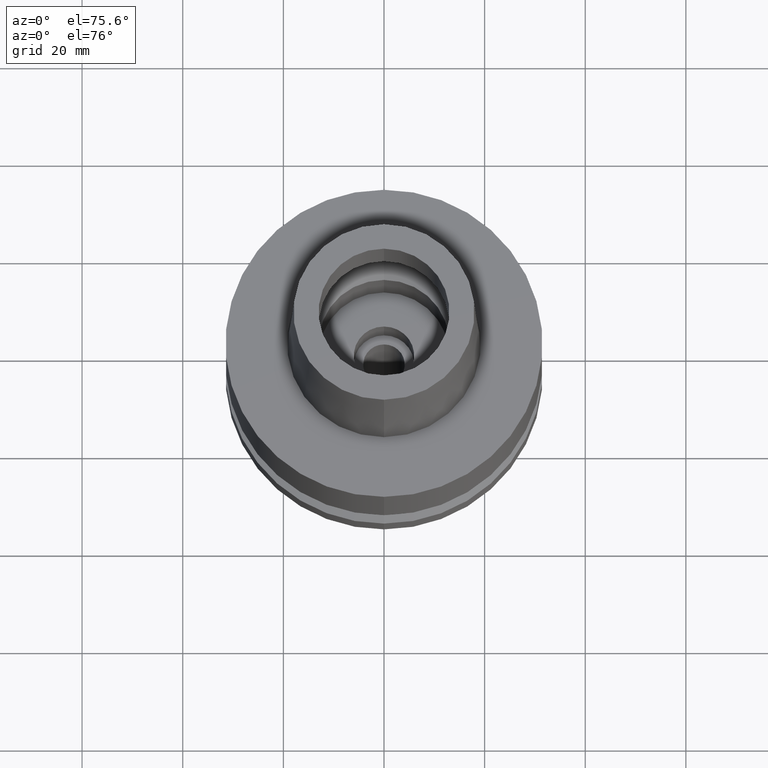
[diagram: clean part render]
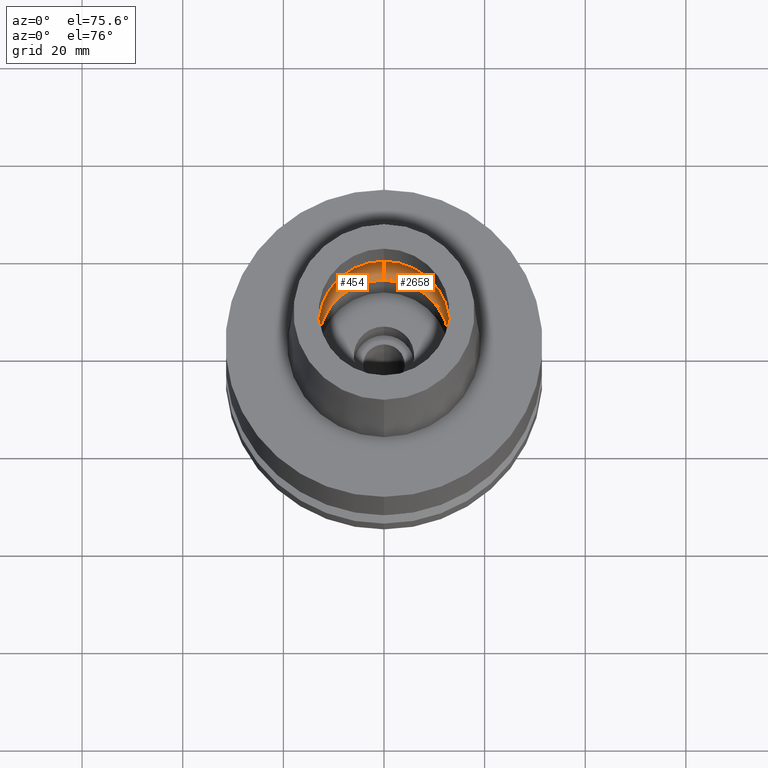
[diagram: same view with one multi-face feature highlighted, each face labeled with its STEP entity id]
A machine part, auxiliary view. The highlighted faces form ONE feature: a constant-radius fillet chain: 2 tangent blend faces with common blend radius 6 mm. The faces share edges in the B-rep.
Their STEP definitions:
[1] entity #2658 (Torus):
#18 = DIRECTION ( 'NONE',  ( 0.0000000000000000000, 1.000000000000000000, 0.0000000000000000000 ) ) ;
#68 = VERTEX_POINT ( 'NONE', #1494 ) ;
#81 = AXIS2_PLACEMENT_3D ( 'NONE', #2024, #721, #18 ) ;
#162 = CARTESIAN_POINT ( 'NONE',  ( 0.0000000000000000000, -10.00000000000000000, 5.245999999999999552 ) ) ;
#165 = AXIS2_PLACEMENT_3D ( 'NONE', #162, #1946, #1095 ) ;
#178 = AXIS2_PLACEMENT_3D ( 'NONE', #2307, #733, #568 ) ;
#196 = DIRECTION ( 'NONE',  ( 0.0000000000000000000, 1.000000000000000000, 0.0000000000000000000 ) ) ;
#208 = CARTESIAN_POINT ( 'NONE',  ( 0.0000000000000000000, 0.0000000000000000000, 5.245999999999999552 ) ) ;
#259 = CARTESIAN_POINT ( 'NONE',  ( 0.0000000000000000000, 10.00000000000000000, 5.245999999999999552 ) ) ;
#484 = DIRECTION ( 'NONE',  ( 0.0000000000000000000, 0.5000000000000169864, -0.8660254037844289376 ) ) ;
#486 = VERTEX_POINT ( 'NONE', #1745 ) ;
#568 = DIRECTION ( 'NONE',  ( 0.0000000000000000000, -1.000000000000000000, 0.0000000000000000000 ) ) ;
#582 = EDGE_CURVE ( 'NONE', #486, #2405, #1827, .T. ) ;
#668 = DIRECTION ( 'NONE',  ( 1.000000000000000000, 0.0000000000000000000, 0.0000000000000000000 ) ) ;
#721 = DIRECTION ( 'NONE',  ( 0.0000000000000000000, 0.0000000000000000000, 1.000000000000000000 ) ) ;
#733 = DIRECTION ( 'NONE',  ( 0.0000000000000000000, 0.0000000000000000000, 1.000000000000000000 ) ) ;
#741 = TOROIDAL_SURFACE ( 'NONE', #81, 10.00000000000000000, 6.000000000000000000 ) ;
#847 = CARTESIAN_POINT ( 'NONE',  ( 0.0000000000000000000, -16.00000000000000000, 5.245999999999999552 ) ) ;
#892 = VERTEX_POINT ( 'NONE', #2203 ) ;
#910 = DIRECTION ( 'NONE',  ( 0.0000000000000000000, 0.0000000000000000000, -1.000000000000000000 ) ) ;
#927 = CIRCLE ( 'NONE', #178, 13.00000000000000000 ) ;
#1066 = CIRCLE ( 'NONE', #2006, 6.000000000000000000 ) ;
#1088 = ORIENTED_EDGE ( 'NONE', *, *, #2791, .F. ) ;
#1095 = DIRECTION ( 'NONE',  ( 0.0000000000000000000, -0.5000000000000169864, -0.8660254037844289376 ) ) ;
#1107 = EDGE_LOOP ( 'NONE', ( #1088, #2555, #2617, #1728 ) ) ;
#1138 = FACE_OUTER_BOUND ( 'NONE', #1107, .T. ) ;
#1494 = CARTESIAN_POINT ( 'NONE',  ( 0.0000000000000000000, 13.00000000000000000, 0.04984757729336999899 ) ) ;
#1728 = ORIENTED_EDGE ( 'NONE', *, *, #2582, .F. ) ;
#1745 = CARTESIAN_POINT ( 'NONE',  ( 0.0000000000000000000, 16.00000000000000000, 5.245999999999999552 ) ) ;
#1765 = EDGE_CURVE ( 'NONE', #892, #2405, #2675, .T. ) ;
#1827 = CIRCLE ( 'NONE', #2556, 16.00000000000000000 ) ;
#1946 = DIRECTION ( 'NONE',  ( -1.000000000000000000, 0.0000000000000000000, 0.0000000000000000000 ) ) ;
#2006 = AXIS2_PLACEMENT_3D ( 'NONE', #259, #668, #484 ) ;
#2024 = CARTESIAN_POINT ( 'NONE',  ( 0.0000000000000000000, 0.0000000000000000000, 5.245999999999999552 ) ) ;
#2203 = CARTESIAN_POINT ( 'NONE',  ( 0.0000000000000000000, -13.00000000000000000, 0.04984757729336999899 ) ) ;
#2307 = CARTESIAN_POINT ( 'NONE',  ( 0.0000000000000000000, 0.0000000000000000000, 0.04984757729336999899 ) ) ;
#2405 = VERTEX_POINT ( 'NONE', #847 ) ;
#2555 = ORIENTED_EDGE ( 'NONE', *, *, #1765, .T. ) ;
#2556 = AXIS2_PLACEMENT_3D ( 'NONE', #208, #910, #196 ) ;
#2582 = EDGE_CURVE ( 'NONE', #68, #486, #1066, .T. ) ;
#2617 = ORIENTED_EDGE ( 'NONE', *, *, #582, .F. ) ;
#2658 = ADVANCED_FACE ( 'NONE', ( #1138 ), #741, .F. ) ;
#2675 = CIRCLE ( 'NONE', #165, 6.000000000000000000 ) ;
#2791 = EDGE_CURVE ( 'NONE', #892, #68, #927, .T. ) ;
[2] entity #454 (Torus):
#68 = VERTEX_POINT ( 'NONE', #1494 ) ;
#96 = AXIS2_PLACEMENT_3D ( 'NONE', #1417, #268, #2711 ) ;
#162 = CARTESIAN_POINT ( 'NONE',  ( 0.0000000000000000000, -10.00000000000000000, 5.245999999999999552 ) ) ;
#165 = AXIS2_PLACEMENT_3D ( 'NONE', #162, #1946, #1095 ) ;
#259 = CARTESIAN_POINT ( 'NONE',  ( 0.0000000000000000000, 10.00000000000000000, 5.245999999999999552 ) ) ;
#268 = DIRECTION ( 'NONE',  ( 0.0000000000000000000, 0.0000000000000000000, -1.000000000000000000 ) ) ;
#454 = ADVANCED_FACE ( 'NONE', ( #2425 ), #2186, .F. ) ;
#484 = DIRECTION ( 'NONE',  ( 0.0000000000000000000, 0.5000000000000169864, -0.8660254037844289376 ) ) ;
#486 = VERTEX_POINT ( 'NONE', #1745 ) ;
#668 = DIRECTION ( 'NONE',  ( 1.000000000000000000, 0.0000000000000000000, 0.0000000000000000000 ) ) ;
#838 = ORIENTED_EDGE ( 'NONE', *, *, #2582, .T. ) ;
#847 = CARTESIAN_POINT ( 'NONE',  ( 0.0000000000000000000, -16.00000000000000000, 5.245999999999999552 ) ) ;
#892 = VERTEX_POINT ( 'NONE', #2203 ) ;
#929 = CARTESIAN_POINT ( 'NONE',  ( 0.0000000000000000000, 0.0000000000000000000, 0.04984757729336999899 ) ) ;
#961 = EDGE_CURVE ( 'NONE', #68, #892, #1408, .T. ) ;
#1066 = CIRCLE ( 'NONE', #2006, 6.000000000000000000 ) ;
#1095 = DIRECTION ( 'NONE',  ( 0.0000000000000000000, -0.5000000000000169864, -0.8660254037844289376 ) ) ;
#1191 = ORIENTED_EDGE ( 'NONE', *, *, #961, .F. ) ;
#1306 = EDGE_CURVE ( 'NONE', #2405, #486, #2284, .T. ) ;
#1347 = ORIENTED_EDGE ( 'NONE', *, *, #1765, .F. ) ;
#1408 = CIRCLE ( 'NONE', #1972, 13.00000000000000000 ) ;
#1417 = CARTESIAN_POINT ( 'NONE',  ( 0.0000000000000000000, 0.0000000000000000000, 5.245999999999999552 ) ) ;
#1494 = CARTESIAN_POINT ( 'NONE',  ( 0.0000000000000000000, 13.00000000000000000, 0.04984757729336999899 ) ) ;
#1745 = CARTESIAN_POINT ( 'NONE',  ( 0.0000000000000000000, 16.00000000000000000, 5.245999999999999552 ) ) ;
#1765 = EDGE_CURVE ( 'NONE', #892, #2405, #2675, .T. ) ;
#1780 = AXIS2_PLACEMENT_3D ( 'NONE', #2021, #2453, #1797 ) ;
#1797 = DIRECTION ( 'NONE',  ( 0.0000000000000000000, 1.000000000000000000, 0.0000000000000000000 ) ) ;
#1825 = DIRECTION ( 'NONE',  ( 0.0000000000000000000, 1.000000000000000000, 0.0000000000000000000 ) ) ;
#1946 = DIRECTION ( 'NONE',  ( -1.000000000000000000, 0.0000000000000000000, 0.0000000000000000000 ) ) ;
#1972 = AXIS2_PLACEMENT_3D ( 'NONE', #929, #2727, #1825 ) ;
#2006 = AXIS2_PLACEMENT_3D ( 'NONE', #259, #668, #484 ) ;
#2021 = CARTESIAN_POINT ( 'NONE',  ( 0.0000000000000000000, 0.0000000000000000000, 5.245999999999999552 ) ) ;
#2093 = EDGE_LOOP ( 'NONE', ( #2298, #1347, #1191, #838 ) ) ;
#2186 = TOROIDAL_SURFACE ( 'NONE', #1780, 10.00000000000000000, 6.000000000000000000 ) ;
#2203 = CARTESIAN_POINT ( 'NONE',  ( 0.0000000000000000000, -13.00000000000000000, 0.04984757729336999899 ) ) ;
#2284 = CIRCLE ( 'NONE', #96, 16.00000000000000000 ) ;
#2298 = ORIENTED_EDGE ( 'NONE', *, *, #1306, .F. ) ;
#2405 = VERTEX_POINT ( 'NONE', #847 ) ;
#2425 = FACE_OUTER_BOUND ( 'NONE', #2093, .T. ) ;
#2453 = DIRECTION ( 'NONE',  ( 0.0000000000000000000, 0.0000000000000000000, 1.000000000000000000 ) ) ;
#2582 = EDGE_CURVE ( 'NONE', #68, #486, #1066, .T. ) ;
#2675 = CIRCLE ( 'NONE', #165, 6.000000000000000000 ) ;
#2711 = DIRECTION ( 'NONE',  ( 0.0000000000000000000, -1.000000000000000000, 0.0000000000000000000 ) ) ;
#2727 = DIRECTION ( 'NONE',  ( 0.0000000000000000000, 0.0000000000000000000, 1.000000000000000000 ) ) ;